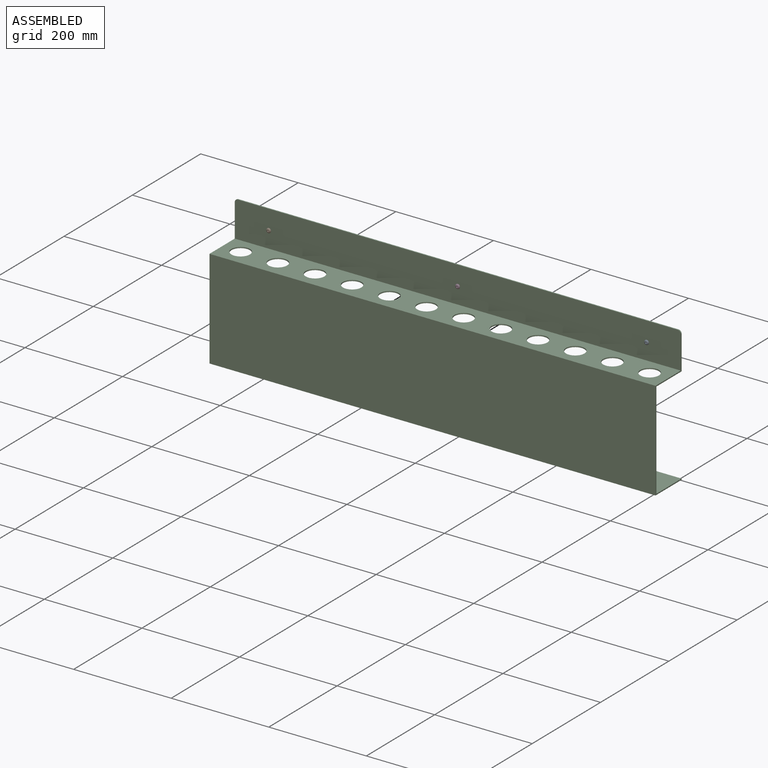
[diagram: assembled view]
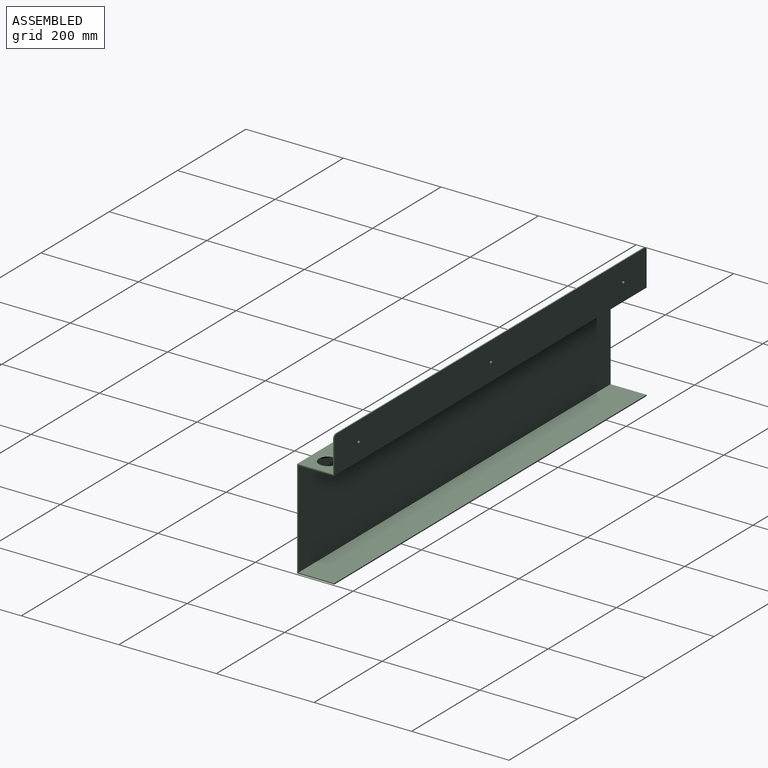
[diagram: assembled view, second angle]
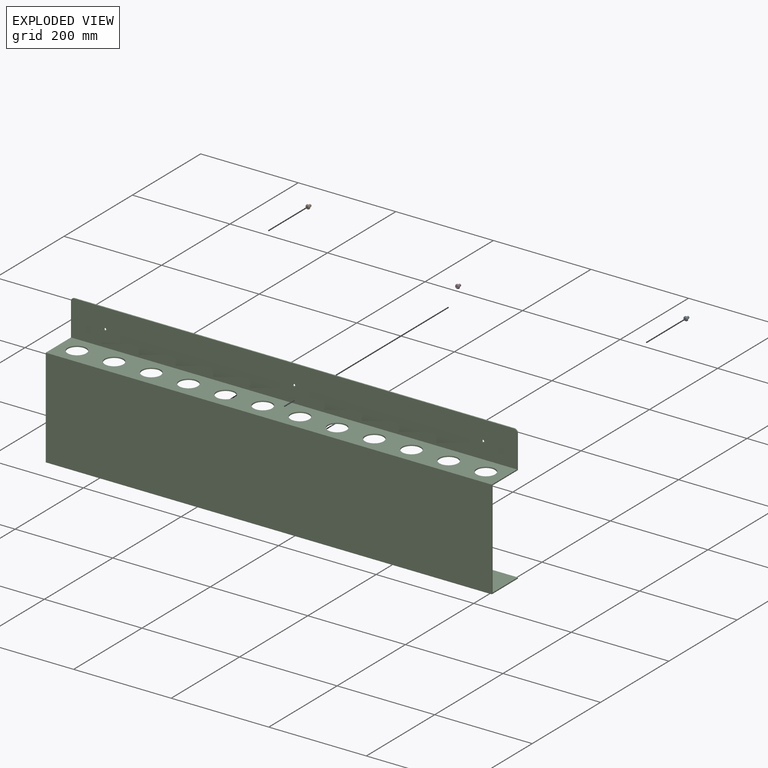
[diagram: exploded view]
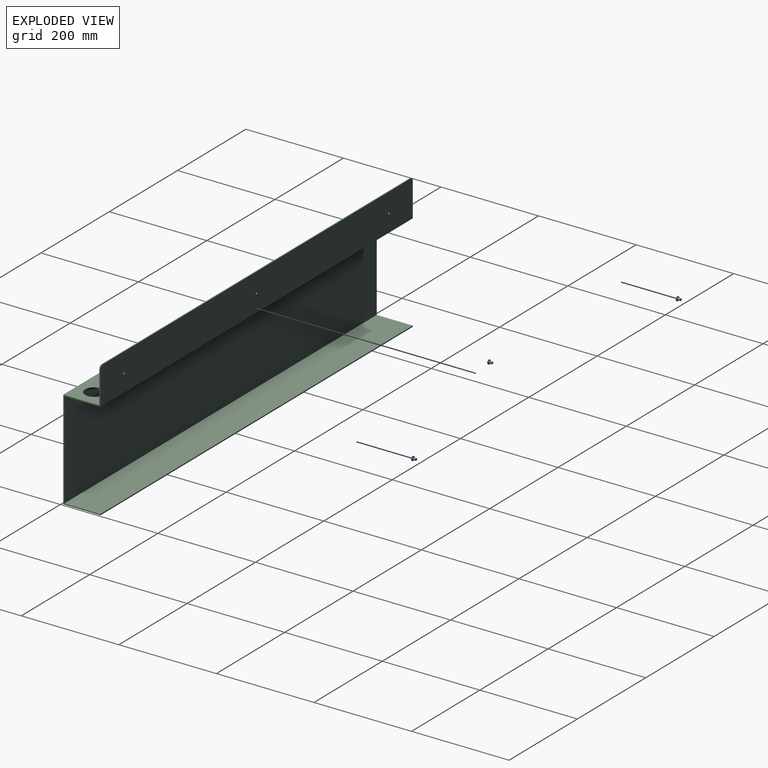
[diagram: exploded view, second angle]
ASSEMBLY  parts=4 mates=3
PART A: 13 faces, bbox 9.2x8.9x9.2 mm
  f0: plane 4.13x4.13mm, normal (0,1,0), area 4.7mm2, adj f1,f6,f7,f8,f9,f10,f11
  f1: torus R=2.06mm, axis (0,1,0), area 78.9mm2, adj f0,f2
  f2: cylinder r=4.58mm len=9.17mm, axis (0,1,0), area 14.6mm2, adj f1,f3
  f3: plane 9.17x9.17mm, normal (0,-1,0), area 47.7mm2, adj f2,f4
  f4: cylinder r=2.41mm len=6.35mm, axis (0,1,0), area 96.3mm2, adj f3,f5
  f5: plane 4.83x4.83mm, normal (0,-1,0), area 18.3mm2, adj f4
  f6: plane 2.06x1.83mm, normal (1,0,0), area 3.8mm2, adj f0,f7,f11,f12
  f7: plane 2.06x1.59mm, normal (0.5,0,0.87), area 3.8mm2, adj f0,f6,f8,f12
  f8: plane 2.06x1.59mm, normal (-0.5,0,0.87), area 3.8mm2, adj f0,f7,f9,f12
  f9: plane 2.06x1.83mm, normal (-1,0,0), area 3.8mm2, adj f0,f8,f10,f12
  f10: plane 2.06x1.59mm, normal (-0.5,0,-0.87), area 3.8mm2, adj f0,f9,f11,f12
  f11: plane 2.06x1.59mm, normal (0.5,0,-0.87), area 3.8mm2, adj f0,f6,f10,f12
  f12: plane 3.67x3.18mm, normal (0,1,0), area 8.7mm2, adj f6,f7,f8,f9,f10,f11
PART B: same geometry as A
PART C: 29 faces, bbox 914.4x76.2x277.1 mm
  f0: plane 914.4x73.91mm, normal (0,0,1), area 53905.9mm2, adj f1,f9,f10,f11,f12,f13,f14,f15
  f1: plane 914.4x203.2mm, normal (0,-1,0), area 185806.1mm2, adj f0,f2,f10,f11
  f2: plane 914.4x76.2mm, normal (0,0,-1), area 69677.3mm2, adj f1,f3,f10,f11
  f3: plane 914.4x2.29mm, normal (0,1,0), area 2090.3mm2, adj f2,f4,f10,f11
  f4: plane 914.4x73.91mm, normal (0,0,1), area 67587mm2, adj f3,f5,f10,f11
  f5: plane 914.4x198.63mm, normal (0,1,0), area 181625.4mm2, adj f4,f6,f10,f11
  f6: plane 914.4x73.91mm, normal (0,0,-1), area 53905.9mm2, adj f5,f7,f10,f11,f12,f13,f14,f15
  f7: plane 914.4x76.2mm, normal (0,1,0), area 69606.8mm2, adj f6,f8,f10,f11,f24,f25,f26,f27
  f8: plane 901.7x2.29mm, normal (0,0,1), area 2061.3mm2, adj f7,f9,f24,f25
  f9: plane 914.4x73.91mm, normal (0,-1,0), area 67516.5mm2, adj f0,f8,f10,f11,f24,f25,f26,f27
  f10: plane 270.76x76.2mm, normal (1,0,0), area 956.9mm2, adj f0,f1,f2,f3,f4,f5,f6,f7
  f11: plane 270.76x76.2mm, normal (-1,0,0), area 956.9mm2, adj f0,f1,f2,f3,f4,f5,f6,f7
  f12: cylinder r=19.05mm len=38.1mm, axis (0,0,1), area 273.6mm2, adj f0,f6
  f13: cylinder r=19.05mm len=38.1mm, axis (0,0,1), area 273.6mm2, adj f0,f6
  f14: cylinder r=19.05mm len=38.1mm, axis (0,0,1), area 273.6mm2, adj f0,f6
  f15: cylinder r=19.05mm len=38.1mm, axis (0,0,1), area 273.6mm2, adj f0,f6
  f16: cylinder r=19.05mm len=38.1mm, axis (0,0,1), area 273.6mm2, adj f0,f6
  f17: cylinder r=19.05mm len=38.1mm, axis (0,0,1), area 273.6mm2, adj f0,f6
  f18: cylinder r=19.05mm len=38.1mm, axis (0,0,1), area 273.6mm2, adj f0,f6
  f19: cylinder r=19.05mm len=38.1mm, axis (0,0,1), area 273.6mm2, adj f0,f6
  f20: cylinder r=19.05mm len=38.1mm, axis (0,0,1), area 273.6mm2, adj f0,f6
  f21: cylinder r=19.05mm len=38.1mm, axis (0,0,1), area 273.6mm2, adj f0,f6
  f22: cylinder r=19.05mm len=38.1mm, axis (0,0,1), area 273.6mm2, adj f0,f6
  f23: cylinder r=19.05mm len=38.1mm, axis (0,0,1), area 273.6mm2, adj f0,f6
  f24: cylinder r=6.35mm len=6.35mm, axis (0,-1,0), area 22.8mm2, adj f7,f8,f9,f11
  f25: cylinder r=6.35mm len=6.35mm, axis (0,1,0), area 22.8mm2, adj f7,f8,f9,f10
  f26: cylinder r=2.37mm len=4.75mm, axis (0,-1,0), area 34.1mm2, adj f7,f9
  f27: cylinder r=2.37mm len=4.75mm, axis (0,-1,0), area 34.1mm2, adj f7,f9
  f28: cylinder r=2.37mm len=4.75mm, axis (0,-1,0), area 34.1mm2, adj f7,f9
PART D: same geometry as A
PLACE A rot(axis=(1,0,0),180deg) t=(352.21,-27.79,25.41)mm
PLACE B rot(axis=(1,0,0),180deg) t=(-422.49,-27.79,25.41)mm
PLACE C t=(-35.14,-22.93,-10.66)mm
PLACE D rot(axis=(1,0,0),180deg) t=(-35.14,-27.79,25.41)mm
MATE fastened D.f1 <-> C.f26  axis (0,-1,0) through (-35.14,-25.22,25.41)mm
MATE fastened B.f1 <-> C.f27  axis (0,-1,0) through (-422.49,-25.22,25.41)mm
MATE fastened A.f1 <-> C.f28  axis (0,-1,0) through (352.21,-25.22,25.41)mm
